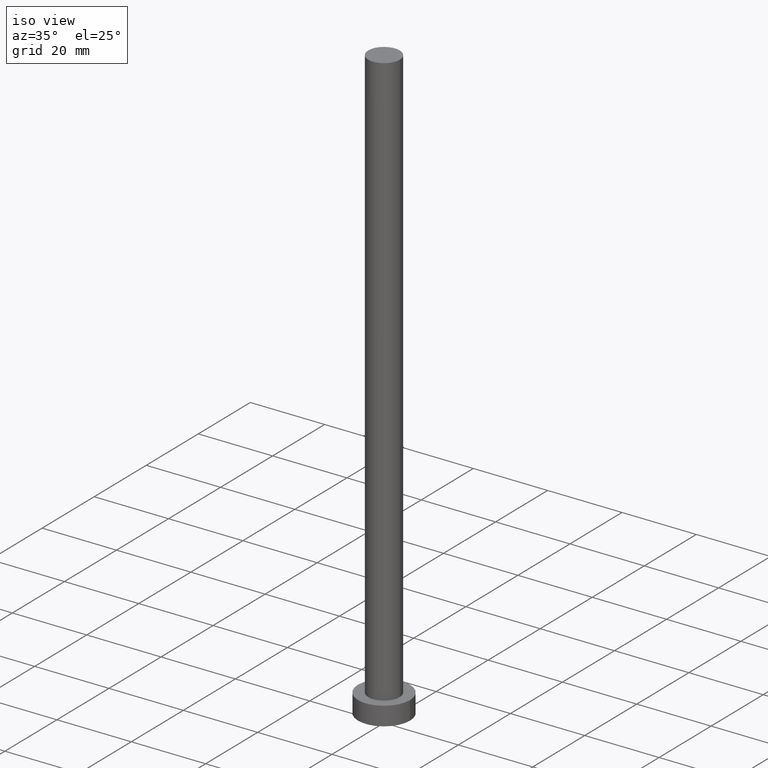
[diagram: clean part render]
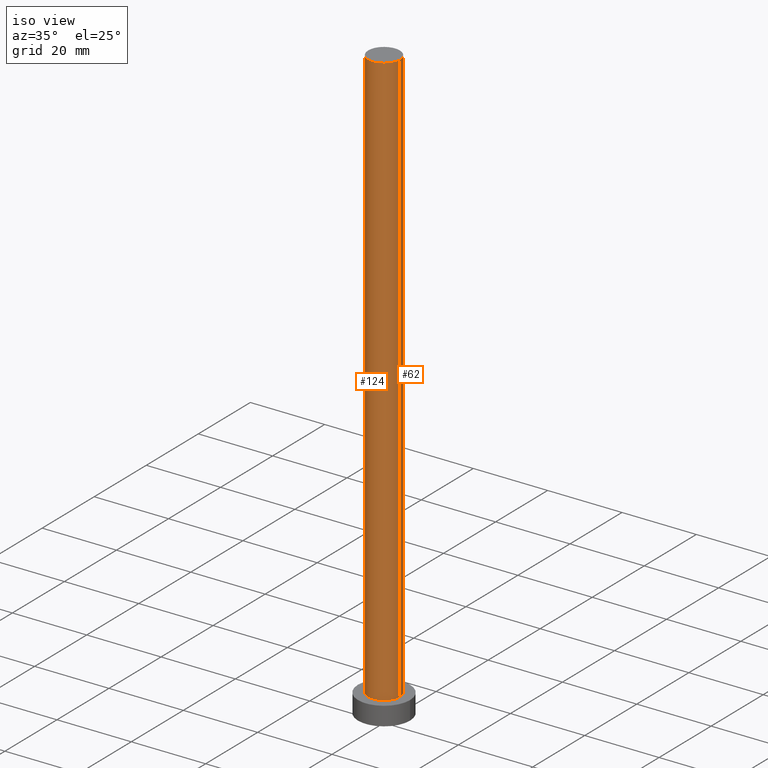
[diagram: same view with one multi-face feature highlighted, each face labeled with its STEP entity id]
A machine part, iso view. The highlighted faces form ONE feature: a constant-radius fillet chain: 2 tangent blend faces with common blend radius 4.25 mm. The faces share edges in the B-rep.
Their STEP definitions:
[1] entity #62 (Cylinder):
#2 = CARTESIAN_POINT ( 'NONE',  ( 0.000000000000000000, 0.000000000000000000, 160.0000000000000000 ) ) ;
#3 = VERTEX_POINT ( 'NONE', #176 ) ;
#8 = DIRECTION ( 'NONE',  ( 0.000000000000000000, 0.000000000000000000, 1.000000000000000000 ) ) ;
#11 = DIRECTION ( 'NONE',  ( -0.000000000000000000, -0.000000000000000000, -1.000000000000000000 ) ) ;
#14 = CARTESIAN_POINT ( 'NONE',  ( -4.250000000000000000, 0.000000000000000000, 160.0000000000000000 ) ) ;
#18 = EDGE_CURVE ( 'NONE', #153, #19, #215, .T. ) ;
#19 = VERTEX_POINT ( 'NONE', #198 ) ;
#23 = ORIENTED_EDGE ( 'NONE', *, *, #150, .F. ) ;
#30 = LINE ( 'NONE', #243, #63 ) ;
#32 = DIRECTION ( 'NONE',  ( 1.000000000000000000, 0.000000000000000000, 0.000000000000000000 ) ) ;
#37 = AXIS2_PLACEMENT_3D ( 'NONE', #103, #50, #225 ) ;
#50 = DIRECTION ( 'NONE',  ( 0.000000000000000000, 0.000000000000000000, 1.000000000000000000 ) ) ;
#53 = AXIS2_PLACEMENT_3D ( 'NONE', #2, #80, #71 ) ;
#62 = ADVANCED_FACE ( 'NONE', ( #181 ), #82, .T. ) ;
#63 = VECTOR ( 'NONE', #11, 1000.000000000000000 ) ;
#71 = DIRECTION ( 'NONE',  ( -1.000000000000000000, 0.000000000000000000, 0.000000000000000000 ) ) ;
#80 = DIRECTION ( 'NONE',  ( -0.000000000000000000, -0.000000000000000000, -1.000000000000000000 ) ) ;
#81 = CIRCLE ( 'NONE', #37, 4.250000000000000000 ) ;
#82 = CYLINDRICAL_SURFACE ( 'NONE', #53, 4.250000000000000000 ) ;
#98 = EDGE_LOOP ( 'NONE', ( #140, #237, #234, #23 ) ) ;
#103 = CARTESIAN_POINT ( 'NONE',  ( 0.000000000000000000, 0.000000000000000000, 5.000000000000000000 ) ) ;
#118 = VECTOR ( 'NONE', #119, 1000.000000000000000 ) ;
#119 = DIRECTION ( 'NONE',  ( -0.000000000000000000, -0.000000000000000000, -1.000000000000000000 ) ) ;
#132 = CARTESIAN_POINT ( 'NONE',  ( 0.000000000000000000, 0.000000000000000000, 160.0000000000000000 ) ) ;
#136 = EDGE_CURVE ( 'NONE', #153, #201, #206, .T. ) ;
#140 = ORIENTED_EDGE ( 'NONE', *, *, #136, .F. ) ;
#147 = CARTESIAN_POINT ( 'NONE',  ( 4.250000000000000000, 5.204748896376250699E-16, 160.0000000000000000 ) ) ;
#150 = EDGE_CURVE ( 'NONE', #201, #3, #30, .T. ) ;
#153 = VERTEX_POINT ( 'NONE', #147 ) ;
#176 = CARTESIAN_POINT ( 'NONE',  ( -4.250000000000000000, 0.000000000000000000, 5.000000000000000000 ) ) ;
#179 = CARTESIAN_POINT ( 'NONE',  ( 4.250000000000000000, 5.204748896376250699E-16, 160.0000000000000000 ) ) ;
#180 = AXIS2_PLACEMENT_3D ( 'NONE', #132, #8, #32 ) ;
#181 = FACE_OUTER_BOUND ( 'NONE', #98, .T. ) ;
#198 = CARTESIAN_POINT ( 'NONE',  ( 4.250000000000000000, 5.204748896376250699E-16, 5.000000000000000000 ) ) ;
#199 = EDGE_CURVE ( 'NONE', #19, #3, #81, .T. ) ;
#201 = VERTEX_POINT ( 'NONE', #14 ) ;
#206 = CIRCLE ( 'NONE', #180, 4.250000000000000000 ) ;
#215 = LINE ( 'NONE', #179, #118 ) ;
#225 = DIRECTION ( 'NONE',  ( 1.000000000000000000, 0.000000000000000000, 0.000000000000000000 ) ) ;
#234 = ORIENTED_EDGE ( 'NONE', *, *, #199, .T. ) ;
#237 = ORIENTED_EDGE ( 'NONE', *, *, #18, .T. ) ;
#243 = CARTESIAN_POINT ( 'NONE',  ( -4.250000000000000000, 0.000000000000000000, 160.0000000000000000 ) ) ;
[2] entity #124 (Cylinder):
#3 = VERTEX_POINT ( 'NONE', #176 ) ;
#4 = EDGE_CURVE ( 'NONE', #3, #19, #236, .T. ) ;
#11 = DIRECTION ( 'NONE',  ( -0.000000000000000000, -0.000000000000000000, -1.000000000000000000 ) ) ;
#12 = CIRCLE ( 'NONE', #212, 4.250000000000000000 ) ;
#14 = CARTESIAN_POINT ( 'NONE',  ( -4.250000000000000000, 0.000000000000000000, 160.0000000000000000 ) ) ;
#18 = EDGE_CURVE ( 'NONE', #153, #19, #215, .T. ) ;
#19 = VERTEX_POINT ( 'NONE', #198 ) ;
#21 = ORIENTED_EDGE ( 'NONE', *, *, #203, .F. ) ;
#24 = ORIENTED_EDGE ( 'NONE', *, *, #4, .T. ) ;
#30 = LINE ( 'NONE', #243, #63 ) ;
#52 = CARTESIAN_POINT ( 'NONE',  ( 0.000000000000000000, 0.000000000000000000, 160.0000000000000000 ) ) ;
#59 = DIRECTION ( 'NONE',  ( 0.000000000000000000, 0.000000000000000000, 1.000000000000000000 ) ) ;
#63 = VECTOR ( 'NONE', #11, 1000.000000000000000 ) ;
#72 = AXIS2_PLACEMENT_3D ( 'NONE', #52, #249, #208 ) ;
#78 = CARTESIAN_POINT ( 'NONE',  ( 0.000000000000000000, 0.000000000000000000, 5.000000000000000000 ) ) ;
#91 = DIRECTION ( 'NONE',  ( 0.000000000000000000, 0.000000000000000000, 1.000000000000000000 ) ) ;
#100 = DIRECTION ( 'NONE',  ( 1.000000000000000000, 0.000000000000000000, 0.000000000000000000 ) ) ;
#118 = VECTOR ( 'NONE', #119, 1000.000000000000000 ) ;
#119 = DIRECTION ( 'NONE',  ( -0.000000000000000000, -0.000000000000000000, -1.000000000000000000 ) ) ;
#124 = ADVANCED_FACE ( 'NONE', ( #168 ), #228, .T. ) ;
#147 = CARTESIAN_POINT ( 'NONE',  ( 4.250000000000000000, 5.204748896376250699E-16, 160.0000000000000000 ) ) ;
#148 = CARTESIAN_POINT ( 'NONE',  ( 0.000000000000000000, 0.000000000000000000, 160.0000000000000000 ) ) ;
#150 = EDGE_CURVE ( 'NONE', #201, #3, #30, .T. ) ;
#153 = VERTEX_POINT ( 'NONE', #147 ) ;
#157 = DIRECTION ( 'NONE',  ( 1.000000000000000000, 0.000000000000000000, 0.000000000000000000 ) ) ;
#160 = ORIENTED_EDGE ( 'NONE', *, *, #150, .T. ) ;
#168 = FACE_OUTER_BOUND ( 'NONE', #242, .T. ) ;
#176 = CARTESIAN_POINT ( 'NONE',  ( -4.250000000000000000, 0.000000000000000000, 5.000000000000000000 ) ) ;
#179 = CARTESIAN_POINT ( 'NONE',  ( 4.250000000000000000, 5.204748896376250699E-16, 160.0000000000000000 ) ) ;
#198 = CARTESIAN_POINT ( 'NONE',  ( 4.250000000000000000, 5.204748896376250699E-16, 5.000000000000000000 ) ) ;
#201 = VERTEX_POINT ( 'NONE', #14 ) ;
#202 = AXIS2_PLACEMENT_3D ( 'NONE', #78, #59, #100 ) ;
#203 = EDGE_CURVE ( 'NONE', #201, #153, #12, .T. ) ;
#208 = DIRECTION ( 'NONE',  ( -1.000000000000000000, 0.000000000000000000, 0.000000000000000000 ) ) ;
#212 = AXIS2_PLACEMENT_3D ( 'NONE', #148, #91, #157 ) ;
#215 = LINE ( 'NONE', #179, #118 ) ;
#228 = CYLINDRICAL_SURFACE ( 'NONE', #72, 4.250000000000000000 ) ;
#235 = ORIENTED_EDGE ( 'NONE', *, *, #18, .F. ) ;
#236 = CIRCLE ( 'NONE', #202, 4.250000000000000000 ) ;
#242 = EDGE_LOOP ( 'NONE', ( #235, #21, #160, #24 ) ) ;
#243 = CARTESIAN_POINT ( 'NONE',  ( -4.250000000000000000, 0.000000000000000000, 160.0000000000000000 ) ) ;
#249 = DIRECTION ( 'NONE',  ( -0.000000000000000000, -0.000000000000000000, -1.000000000000000000 ) ) ;